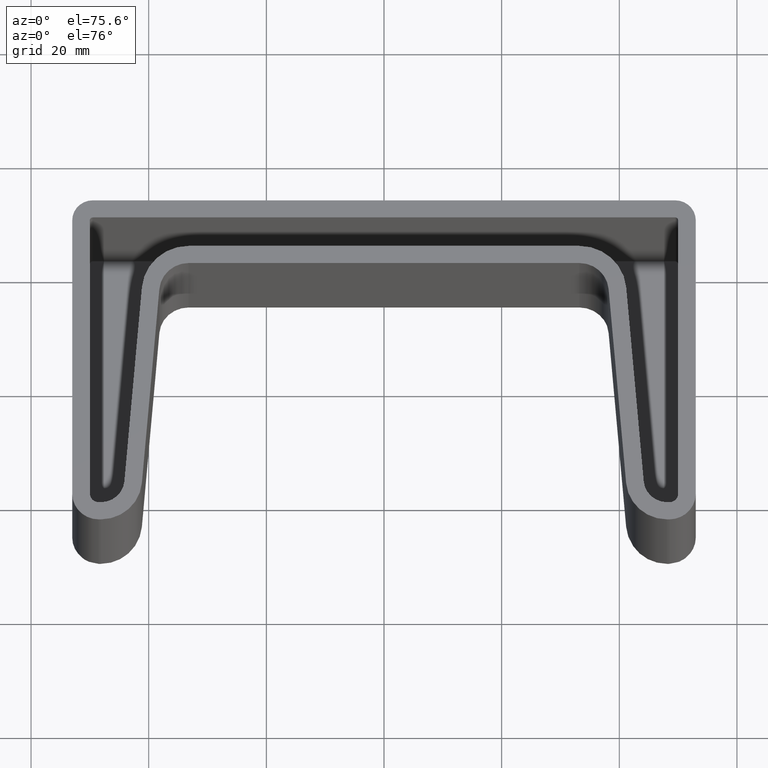
[diagram: clean part render]
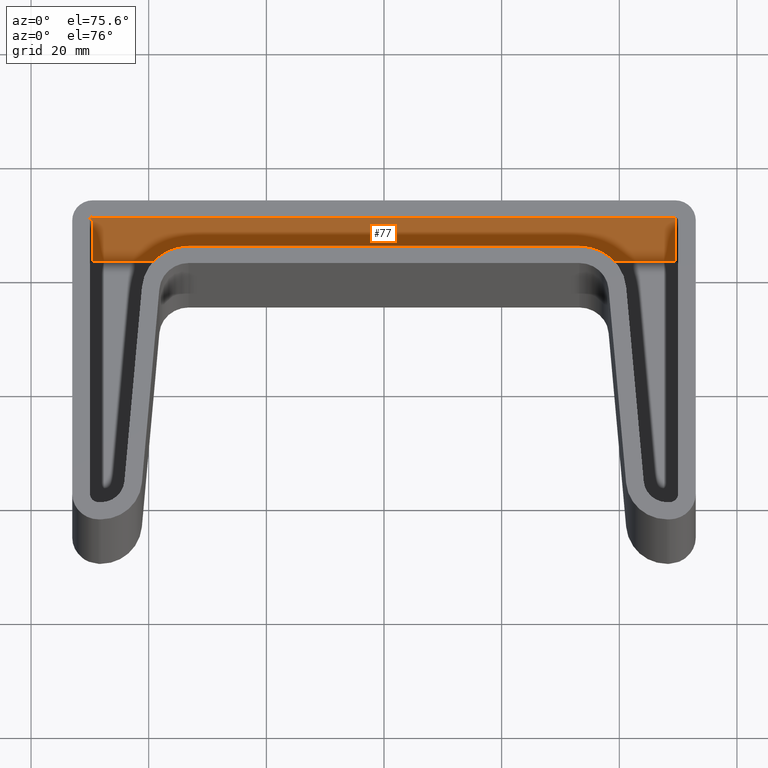
[diagram: same view with one face highlighted and labeled with its STEP entity id]
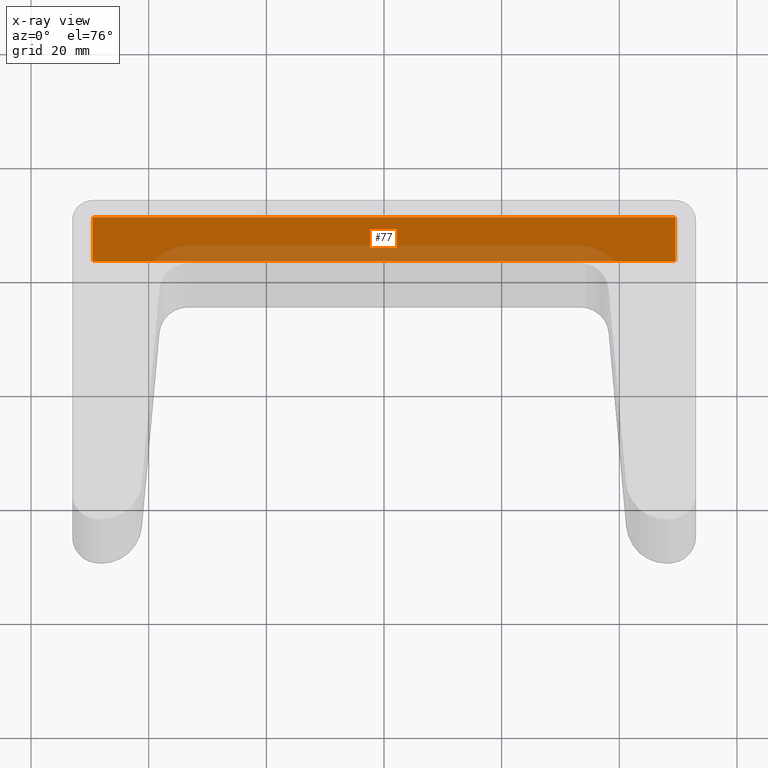
[diagram: x-ray of the same camera — body ghosted, the highlighted face saturated]
A machine part, auxiliary view. The second image highlights one B-rep face of the part: STEP entity #77.
The next image is the same camera in x-ray: the body ghosted, the highlighted face saturated — about 26% of this face is hidden behind the body in this view.
In plain terms, the highlighted planar face has unit normal (-0, 1, -0).
Its self-contained STEP definition (entity closure, byte-faithful):
#77 = ADVANCED_FACE( '', ( #132 ), #133, .F. );
#132 = FACE_OUTER_BOUND( '', #235, .T. );
#133 = PLANE( '', #236 );
#235 = EDGE_LOOP( '', ( #435, #436, #437, #438 ) );
#236 = AXIS2_PLACEMENT_3D( '', #439, #440, #441 );
#435 = ORIENTED_EDGE( '', *, *, #825, .F. );
#436 = ORIENTED_EDGE( '', *, *, #820, .F. );
#437 = ORIENTED_EDGE( '', *, *, #826, .F. );
#438 = ORIENTED_EDGE( '', *, *, #827, .T. );
#439 = CARTESIAN_POINT( '', ( -50.0000000000000, 2.50000000000001, 0.000188393064009778 ) );
#440 = DIRECTION( '', ( -2.75855020126448E-017, 1.00000000000000, -1.22460635382238E-016 ) );
#441 = DIRECTION( '', ( -1.22460635382238E-016, -1.22460635382238E-016, -1.00000000000000 ) );
#820 = EDGE_CURVE( '', #976, #978, #979, .T. );
#825 = EDGE_CURVE( '', #978, #987, #988, .T. );
#826 = EDGE_CURVE( '', #989, #976, #990, .T. );
#827 = EDGE_CURVE( '', #989, #987, #991, .T. );
#976 = VERTEX_POINT( '', #1199 );
#978 = VERTEX_POINT( '', #1201 );
#979 = LINE( '', #1202, #1203 );
#987 = VERTEX_POINT( '', #1213 );
#988 = LINE( '', #1214, #1215 );
#989 = VERTEX_POINT( '', #1216 );
#990 = LINE( '', #1217, #1218 );
#991 = LINE( '', #1219, #1220 );
#1199 = CARTESIAN_POINT( '', ( -49.5000000000000, 2.50000000000000, 0.000188393064009778 ) );
#1201 = CARTESIAN_POINT( '', ( 49.5000000000000, 2.50000000000001, 0.000188393063995900 ) );
#1202 = CARTESIAN_POINT( '', ( -12.5000000000000, 2.50000000000000, 0.000188393064002839 ) );
#1203 = VECTOR( '', #1466, 1000.00000000000 );
#1213 = CARTESIAN_POINT( '', ( 49.5000000000000, 2.50000000000001, -29.9998116069360 ) );
#1214 = CARTESIAN_POINT( '', ( 49.5000000000000, 2.50000000000001, 0.000188393063995900 ) );
#1215 = VECTOR( '', #1475, 1000.00000000000 );
#1216 = CARTESIAN_POINT( '', ( -49.5000000000000, 2.50000000000000, -29.9998116069360 ) );
#1217 = CARTESIAN_POINT( '', ( -49.5000000000000, 2.50000000000001, 0.000188393064009778 ) );
#1218 = VECTOR( '', #1476, 1000.00000000000 );
#1219 = CARTESIAN_POINT( '', ( 50.0000000000000, 2.50000000000001, -29.9998116069360 ) );
#1220 = VECTOR( '', #1477, 1000.00000000000 );
#1466 = DIRECTION( '', ( 1.00000000000000, 2.75855020126448E-017, -1.22460635382238E-016 ) );
#1475 = DIRECTION( '', ( -1.22460635382238E-016, -1.22460635382238E-016, -1.00000000000000 ) );
#1476 = DIRECTION( '', ( 1.22460635382238E-016, 1.22460635382238E-016, 1.00000000000000 ) );
#1477 = DIRECTION( '', ( 1.00000000000000, 2.75855020126448E-017, -1.22460635382238E-016 ) );